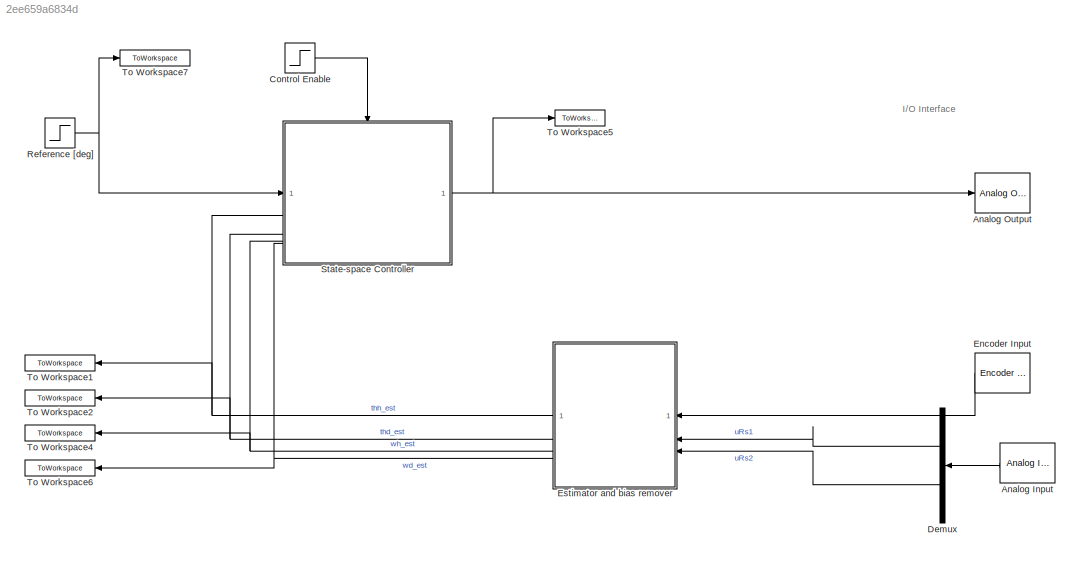
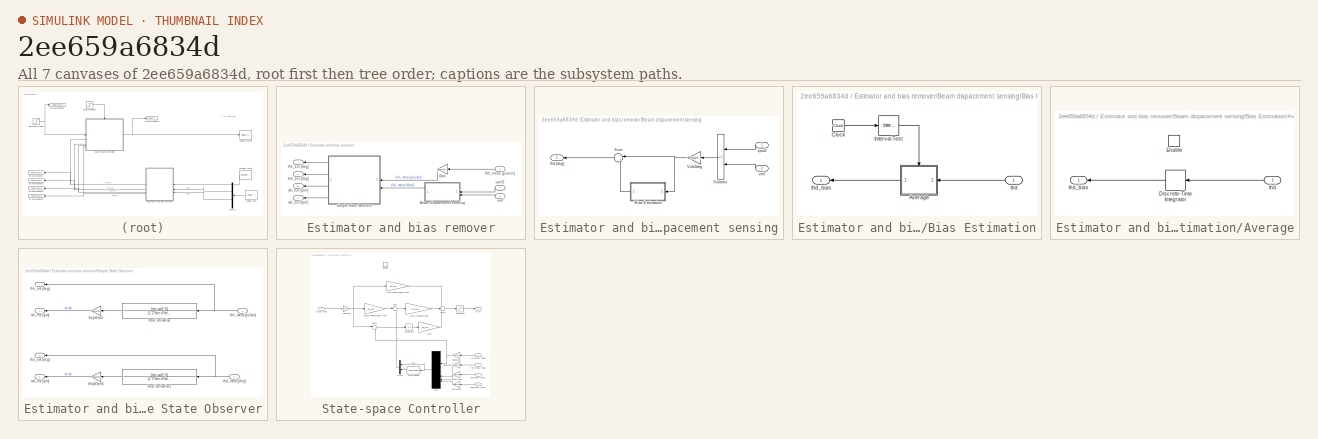
[diagram: thumbnail index - all 7 canvases of the model, root first then tree order]
MODEL slx_2ee659a6834d
KIND model
CONFIG AbsTol = auto
CONFIG EnableMultiTasking = off
CONFIG FixedStep = 0.001
CONFIG MaxStep = auto
CONFIG MinStep = auto
CONFIG RelTol = 1e-3
CONFIG SampleTimeConstraint = Unconstrained
CONFIG SolverName = FixedStepAuto
CONFIG StartTime = 0.0
CONFIG StopTime = 5
BLOCK [Reference] Analog Input  REF=sldrtlib/Analog Input
  AttributesFormatString = National Instruments\nPCI-6221 [auto]
  NameLocation = top
  SourceBlock = sldrtlib/Analog Input
  SourceType = Simulink Desktop Real-Time Analog Input
BLOCK [Reference] Analog Output  REF=sldrtlib/Analog Output
  AttributesFormatString = National Instruments\nPCI-6221 [auto]
  SourceBlock = sldrtlib/Analog Output
  SourceType = Simulink Desktop Real-Time Analog Output
BLOCK [Step] Control Enable
  SampleTime = 0
  Time = 0.8
BLOCK [Demux] Demux
  NameLocation = top
  Outputs = 2
BLOCK [Reference] Encoder Input  REF=sldrtlib/Encoder Input
  AttributesFormatString = National Instruments\nPCI-6221 [auto]
  NameLocation = top
  SourceBlock = sldrtlib/Encoder Input
  SourceType = Simulink Desktop Real-Time Encoder Input
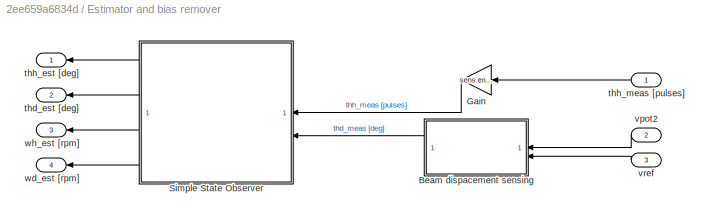
BLOCK [SubSystem] Estimator and bias remover
  NameLocation = top
BLOCK [SubSystem] Estimator and bias remover/Beam dispacement sensing
BLOCK [SubSystem] Estimator and bias remover/Beam dispacement sensing/Bias Estimation
BLOCK [SubSystem] Estimator and bias remover/Beam dispacement sensing/Bias Estimation/Average
BLOCK [DiscreteIntegrator] Estimator and bias remover/Beam dispacement sensing/Bias Estimation/Average/Discrete-Time Integrator
  ICPrevOutput = DiscIntNeverNeededParam
  ICPrevScaledInput = DiscIntNeverNeededParam
  InitialConditionSetting = Auto
  NameLocation = top
  SampleTime = Ts
  gainval = 1/(0.7-0.2)
BLOCK [EnablePort] Estimator and bias remover/Beam dispacement sensing/Bias Estimation/Average/Enable
BLOCK [Inport] Estimator and bias remover/Beam dispacement sensing/Bias Estimation/Average/thd
  NameLocation = top
BLOCK [Outport] Estimator and bias remover/Beam dispacement sensing/Bias Estimation/Average/thd_bias
  NameLocation = top
BLOCK [Clock] Estimator and bias remover/Beam dispacement sensing/Bias Estimation/Clock
BLOCK [Reference] Estimator and bias remover/Beam dispacement sensing/Bias Estimation/Interval Test  REF=simulink/Logic and Bit
Operations/Interval Test
  SourceBlock = simulink/Logic and Bit\nOperations/Interval Test
  SourceType = Interval Test
BLOCK [Inport] Estimator and bias remover/Beam dispacement sensing/Bias Estimation/thd
  NameLocation = top
BLOCK [Outport] Estimator and bias remover/Beam dispacement sensing/Bias Estimation/thd_bias
  NameLocation = top
BLOCK [Sum] Estimator and bias remover/Beam dispacement sensing/Subtract
  IconShape = rectangular
  Inputs = +-
  NameLocation = top
BLOCK [Sum] Estimator and bias remover/Beam dispacement sensing/Sum
  Inputs = |+-
  NameLocation = top
BLOCK [Gain] Estimator and bias remover/Beam dispacement sensing/Volt2deg
  Gain = sens.pot2.V2deg
  NameLocation = top
BLOCK [Outport] Estimator and bias remover/Beam dispacement sensing/thd [deg]
  NameLocation = top
BLOCK [Inport] Estimator and bias remover/Beam dispacement sensing/vpot2
  NameLocation = top
BLOCK [Inport] Estimator and bias remover/Beam dispacement sensing/vref
  NameLocation = top
  Port = 2
BLOCK [Gain] Estimator and bias remover/Gain
  Gain = sens.enc.pulse2deg
  NameLocation = top
BLOCK [SubSystem] Estimator and bias remover/Simple State Observer
  NameLocation = top
BLOCK [TransferFcn] Estimator and bias remover/Simple State Observer/Real Derivative
  Denominator = [1 2*der.d*der.wc der.wc^2]
  NameLocation = top
  Numerator = [der.wc^2 0]
BLOCK [TransferFcn] Estimator and bias remover/Simple State Observer/Real Derivative1
  Denominator = [1 2*der.d*der.wc der.wc^2]
  NameLocation = top
  Numerator = [der.wc^2 0]
BLOCK [Gain] Estimator and bias remover/Simple State Observer/degs2rpm
  Gain = degs2rpm
BLOCK [Gain] Estimator and bias remover/Simple State Observer/degs2rpm1
  Gain = degs2rpm
BLOCK [Outport] Estimator and bias remover/Simple State Observer/thd_est [deg]
  NameLocation = top
  Port = 2
BLOCK [Inport] Estimator and bias remover/Simple State Observer/thd_meas [deg]
  NameLocation = top
  Port = 2
BLOCK [Outport] Estimator and bias remover/Simple State Observer/thh_est [deg]
  NameLocation = top
BLOCK [Inport] Estimator and bias remover/Simple State Observer/thh_meas [pulses]
  NameLocation = top
BLOCK [Outport] Estimator and bias remover/Simple State Observer/wd_est [rpm]
  NameLocation = top
  Port = 4
BLOCK [Outport] Estimator and bias remover/Simple State Observer/wh_est [rpm]
  NameLocation = top
  Port = 3
BLOCK [Outport] Estimator and bias remover/thd_est [deg]
  NameLocation = top
  Port = 2
BLOCK [Outport] Estimator and bias remover/thh_est [deg]
  NameLocation = top
BLOCK [Inport] Estimator and bias remover/thh_meas [pulses]
  NameLocation = top
BLOCK [Inport] Estimator and bias remover/vpot2
  NameLocation = top
  Port = 2
BLOCK [Inport] Estimator and bias remover/vref
  Port = 3
BLOCK [Outport] Estimator and bias remover/wd_est [rpm]
  NameLocation = top
  Port = 4
BLOCK [Outport] Estimator and bias remover/wh_est [rpm]
  NameLocation = top
  Port = 3
BLOCK [Step] Reference [deg]
  After = simul.stepdeg
  SampleTime = Ts
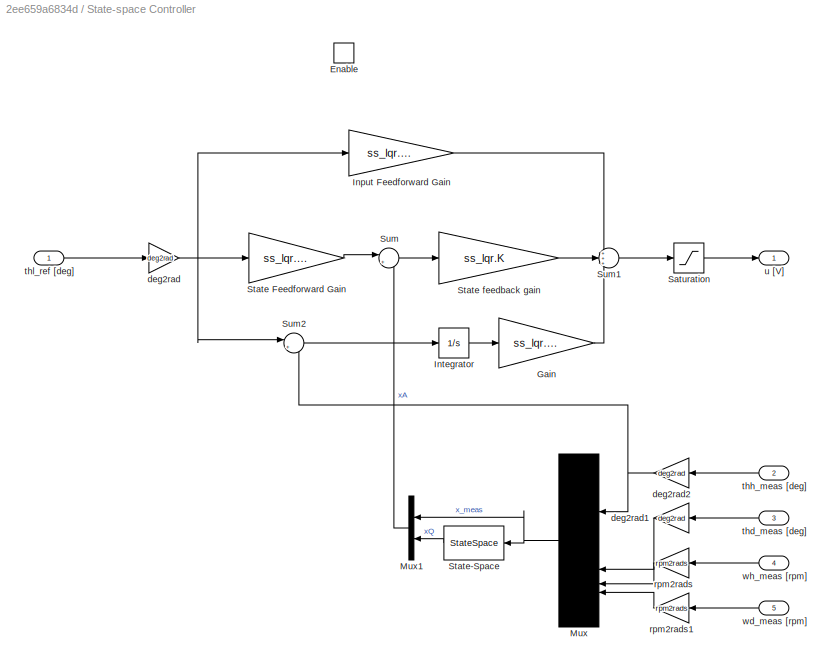
BLOCK [SubSystem] State-space Controller
BLOCK [EnablePort] State-space Controller/Enable
BLOCK [Gain] State-space Controller/Gain
  Gain = ss_lqr.Ki
BLOCK [Gain] State-space Controller/Input Feedforward Gain
  Gain = ss_lqr.Nu
BLOCK [Integrator] State-space Controller/Integrator
BLOCK [Mux] State-space Controller/Mux
  DisplayOption = signals
  NameLocation = top
BLOCK [Mux] State-space Controller/Mux1
  DisplayOption = bar
  Inputs = 2
  NameLocation = top
BLOCK [Saturate] State-space Controller/Saturation
  LowerLimit = -10
  UpperLimit = 10
BLOCK [Gain] State-space Controller/State Feedforward Gain
  Gain = ss_lqr.Nx
BLOCK [Gain] State-space Controller/State feedback gain
  Gain = ss_lqr.K
  Multiplication = Matrix(K*u)
BLOCK [StateSpace] State-space Controller/State-Space
  A = ss_lqr.AQ
  B = ss_lqr.BQ
  C = ss_lqr.I
  D = ss_lqr.zero
  InitialCondition = 0
  NameLocation = top
BLOCK [Sum] State-space Controller/Sum
  Inputs = |+-
BLOCK [Sum] State-space Controller/Sum1
  Inputs = +++
BLOCK [Sum] State-space Controller/Sum2
  Inputs = |+-
BLOCK [Gain] State-space Controller/deg2rad
  Gain = deg2rad
BLOCK [Gain] State-space Controller/deg2rad1
  Gain = deg2rad
  NameLocation = top
BLOCK [Gain] State-space Controller/deg2rad2
  Gain = deg2rad
  NameLocation = top
BLOCK [Gain] State-space Controller/rpm2rads
  Gain = rpm2rads
BLOCK [Gain] State-space Controller/rpm2rads1
  Gain = rpm2rads
BLOCK [Inport] State-space Controller/thd_meas [deg]
  NameLocation = top
  Port = 3
BLOCK [Inport] State-space Controller/thh_meas [deg]
  NameLocation = top
  Port = 2
BLOCK [Inport] State-space Controller/thl_ref [deg]
BLOCK [Outport] State-space Controller/u [V]
BLOCK [Inport] State-space Controller/wd_meas [rpm]
  NameLocation = top
  Port = 5
BLOCK [Inport] State-space Controller/wh_meas [rpm]
  NameLocation = top
  Port = 4
BLOCK [ToWorkspace] To Workspace1
  FixptAsFi = on
  MaxDataPoints = inf
  SampleTime = Ts
  SaveFormat = Structure With Time
  VariableName = thh_est
BLOCK [ToWorkspace] To Workspace2
  FixptAsFi = on
  MaxDataPoints = inf
  SampleTime = Ts
  SaveFormat = Structure With Time
  VariableName = thd_est
BLOCK [ToWorkspace] To Workspace4
  FixptAsFi = on
  MaxDataPoints = inf
  SampleTime = Ts
  SaveFormat = Structure With Time
  VariableName = wh_est
BLOCK [ToWorkspace] To Workspace5
  FixptAsFi = on
  MaxDataPoints = inf
  SampleTime = Ts
  SaveFormat = Structure With Time
  VariableName = u
BLOCK [ToWorkspace] To Workspace6
  FixptAsFi = on
  MaxDataPoints = inf
  SampleTime = Ts
  SaveFormat = Structure With Time
  VariableName = wd_est
BLOCK [ToWorkspace] To Workspace7
  FixptAsFi = on
  MaxDataPoints = inf
  NameLocation = top
  SampleTime = Ts
  SaveFormat = Structure With Time
  VariableName = thh_ref
ANNOTATION (root): I/O Interface
LINE Analog Input:1 -> Demux:1
LINE Control Enable:1 -> State-space Controller:enable
LINE Demux:1 -> Estimator and bias remover:2
LINE Demux:2 -> Estimator and bias remover:3
LINE Encoder Input:1 -> Estimator and bias remover:1
LINE Estimator and bias remover/Beam dispacement sensing/Bias Estimation/Average/Discrete-Time Integrator:1 -> Estimator and bias remover/Beam dispacement sensing/Bias Estimation/Average/thd_bias:1
LINE Estimator and bias remover/Beam dispacement sensing/Bias Estimation/Average/thd:1 -> Estimator and bias remover/Beam dispacement sensing/Bias Estimation/Average/Discrete-Time Integrator:1
LINE Estimator and bias remover/Beam dispacement sensing/Bias Estimation/Average:1 -> Estimator and bias remover/Beam dispacement sensing/Bias Estimation/thd_bias:1
LINE Estimator and bias remover/Beam dispacement sensing/Bias Estimation/Clock:1 -> Estimator and bias remover/Beam dispacement sensing/Bias Estimation/Interval Test:1
LINE Estimator and bias remover/Beam dispacement sensing/Bias Estimation/Interval Test:1 -> Estimator and bias remover/Beam dispacement sensing/Bias Estimation/Average:enable
LINE Estimator and bias remover/Beam dispacement sensing/Bias Estimation/thd:1 -> Estimator and bias remover/Beam dispacement sensing/Bias Estimation/Average:1
LINE Estimator and bias remover/Beam dispacement sensing/Bias Estimation:1 -> Estimator and bias remover/Beam dispacement sensing/Sum:2
LINE Estimator and bias remover/Beam dispacement sensing/Subtract:1 -> Estimator and bias remover/Beam dispacement sensing/Volt2deg:1
LINE Estimator and bias remover/Beam dispacement sensing/Sum:1 -> Estimator and bias remover/Beam dispacement sensing/thd [deg]:1
NET Estimator and bias remover/Beam dispacement sensing/Volt2deg:1 -> Estimator and bias remover/Beam dispacement sensing/Bias Estimation:1, Estimator and bias remover/Beam dispacement sensing/Sum:1
LINE Estimator and bias remover/Beam dispacement sensing/vpot2:1 -> Estimator and bias remover/Beam dispacement sensing/Subtract:1
LINE Estimator and bias remover/Beam dispacement sensing/vref:1 -> Estimator and bias remover/Beam dispacement sensing/Subtract:2
LINE Estimator and bias remover/Beam dispacement sensing:1 -> Estimator and bias remover/Simple State Observer:2
LINE Estimator and bias remover/Gain:1 -> Estimator and bias remover/Simple State Observer:1
LINE Estimator and bias remover/Simple State Observer/Real Derivative1:1 -> Estimator and bias remover/Simple State Observer/degs2rpm1:1
LINE Estimator and bias remover/Simple State Observer/Real Derivative:1 -> Estimator and bias remover/Simple State Observer/degs2rpm:1
LINE Estimator and bias remover/Simple State Observer/degs2rpm1:1 -> Estimator and bias remover/Simple State Observer/wd_est [rpm]:1
LINE Estimator and bias remover/Simple State Observer/degs2rpm:1 -> Estimator and bias remover/Simple State Observer/wh_est [rpm]:1
NET Estimator and bias remover/Simple State Observer/thd_meas [deg]:1 -> Estimator and bias remover/Simple State Observer/Real Derivative1:1, Estimator and bias remover/Simple State Observer/thd_est [deg]:1
NET Estimator and bias remover/Simple State Observer/thh_meas [pulses]:1 -> Estimator and bias remover/Simple State Observer/Real Derivative:1, Estimator and bias remover/Simple State Observer/thh_est [deg]:1
LINE Estimator and bias remover/Simple State Observer:1 -> Estimator and bias remover/thh_est [deg]:1
LINE Estimator and bias remover/Simple State Observer:2 -> Estimator and bias remover/thd_est [deg]:1
LINE Estimator and bias remover/Simple State Observer:3 -> Estimator and bias remover/wh_est [rpm]:1
LINE Estimator and bias remover/Simple State Observer:4 -> Estimator and bias remover/wd_est [rpm]:1
LINE Estimator and bias remover/thh_meas [pulses]:1 -> Estimator and bias remover/Gain:1
LINE Estimator and bias remover/vpot2:1 -> Estimator and bias remover/Beam dispacement sensing:1
LINE Estimator and bias remover/vref:1 -> Estimator and bias remover/Beam dispacement sensing:2
NET Estimator and bias remover:1 -> State-space Controller:2, To Workspace1:1
NET Estimator and bias remover:2 -> State-space Controller:3, To Workspace2:1
NET Estimator and bias remover:3 -> State-space Controller:4, To Workspace4:1
NET Estimator and bias remover:4 -> State-space Controller:5, To Workspace6:1
NET Reference [deg]:1 -> State-space Controller:1, To Workspace7:1
LINE State-space Controller/Gain:1 -> State-space Controller/Sum1:3
LINE State-space Controller/Input Feedforward Gain:1 -> State-space Controller/Sum1:1
LINE State-space Controller/Integrator:1 -> State-space Controller/Gain:1
LINE State-space Controller/Mux1:1 -> State-space Controller/Sum:2
NET State-space Controller/Mux:1 -> State-space Controller/Mux1:1, State-space Controller/State-Space:1
LINE State-space Controller/Saturation:1 -> State-space Controller/u [V]:1
LINE State-space Controller/State Feedforward Gain:1 -> State-space Controller/Sum:1
LINE State-space Controller/State feedback gain:1 -> State-space Controller/Sum1:2
LINE State-space Controller/State-Space:1 -> State-space Controller/Mux1:2
LINE State-space Controller/Sum1:1 -> State-space Controller/Saturation:1
LINE State-space Controller/Sum2:1 -> State-space Controller/Integrator:1
LINE State-space Controller/Sum:1 -> State-space Controller/State feedback gain:1
LINE State-space Controller/deg2rad1:1 -> State-space Controller/Mux:2
NET State-space Controller/deg2rad2:1 -> State-space Controller/Mux:1, State-space Controller/Sum2:2
NET State-space Controller/deg2rad:1 -> State-space Controller/Input Feedforward Gain:1, State-space Controller/State Feedforward Gain:1, State-space Controller/Sum2:1
LINE State-space Controller/rpm2rads1:1 -> State-space Controller/Mux:4
LINE State-space Controller/rpm2rads:1 -> State-space Controller/Mux:3
LINE State-space Controller/thd_meas [deg]:1 -> State-space Controller/deg2rad1:1
LINE State-space Controller/thh_meas [deg]:1 -> State-space Controller/deg2rad2:1
LINE State-space Controller/thl_ref [deg]:1 -> State-space Controller/deg2rad:1
LINE State-space Controller/wd_meas [rpm]:1 -> State-space Controller/rpm2rads1:1
LINE State-space Controller/wh_meas [rpm]:1 -> State-space Controller/rpm2rads:1
NET State-space Controller:1 -> Analog Output:1, To Workspace5:1
note: NET lines group one-source signal fan-out (src -> all destinations, sorted); 1:1 wires keep LINE
